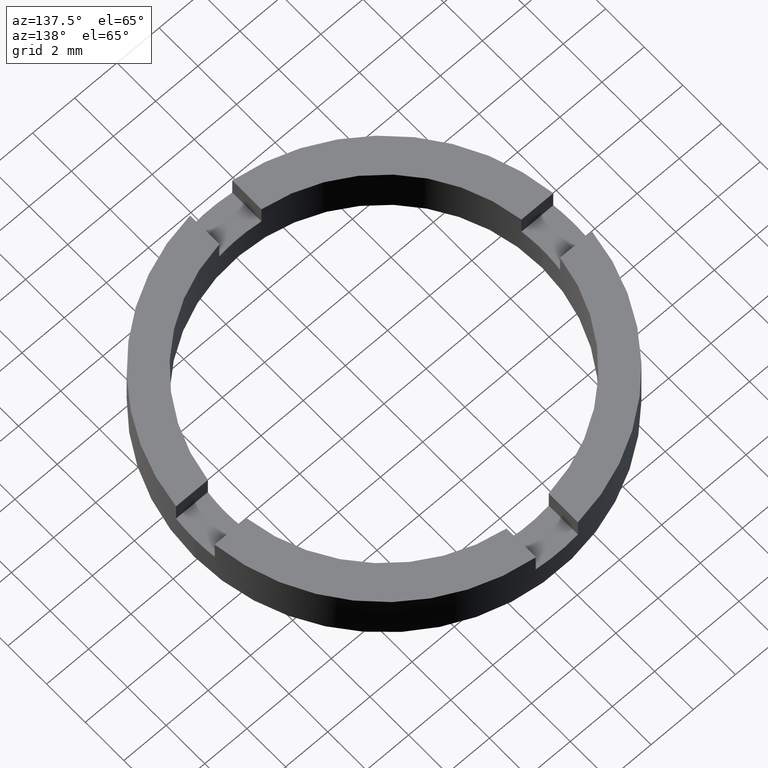
[diagram: clean part render]
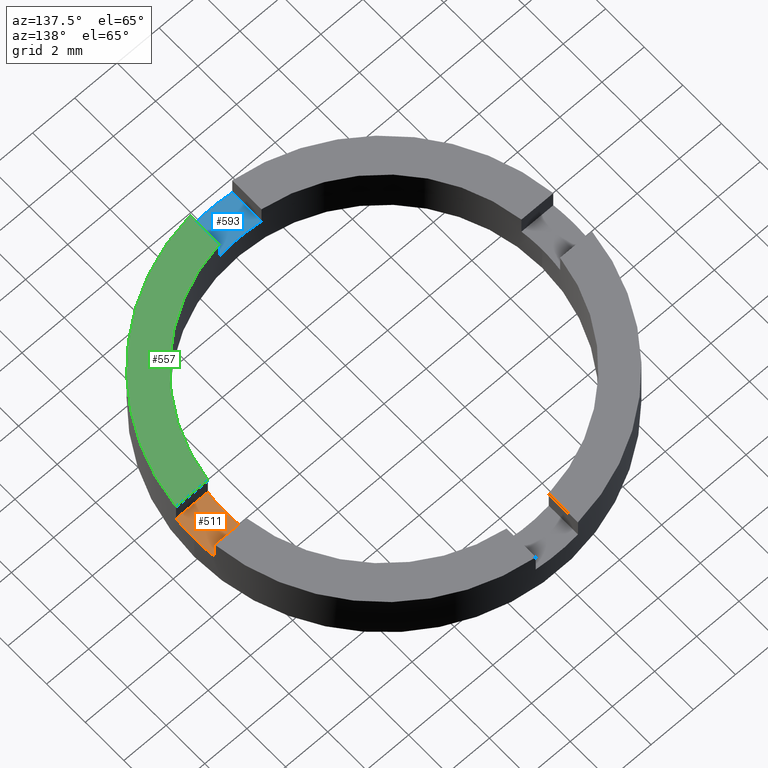
[diagram: same view with three faces highlighted in distinct colors, each labeled with its STEP entity id]
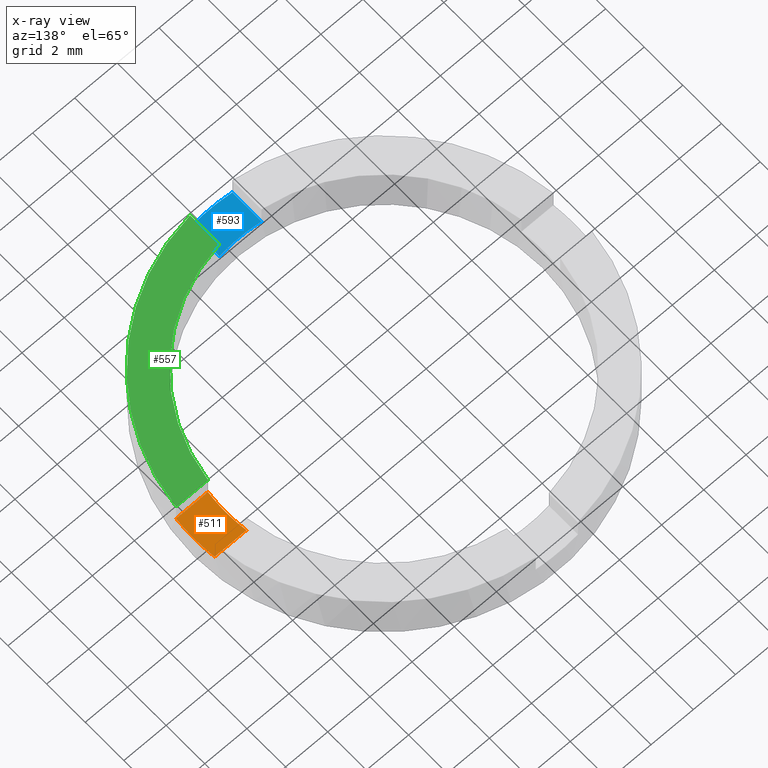
[diagram: x-ray of the same camera — body ghosted, the three highlighted faces saturated]
A machine part, auxiliary view with three faces highlighted in distinct colors.
The next image is the same camera in x-ray (body ghosted, the three faces saturated) — at least one of them is partly hidden behind the body in this view.
Their STEP definitions:

[orange] entity #511 — the highlighted planar face has unit normal (-0, 0, 1).
#47 = CIRCLE ( 'NONE', #61, 9.000000000000000000 ) ;
#50 = LINE ( 'NONE', #742, #319 ) ;
#52 = CIRCLE ( 'NONE', #683, 7.500000000000000000 ) ;
#61 = AXIS2_PLACEMENT_3D ( 'NONE', #219, #422, #149 ) ;
#100 = EDGE_CURVE ( 'NONE', #665, #562, #52, .T. ) ;
#101 = CARTESIAN_POINT ( 'NONE',  ( 7.500000000000000000, 9.184850993605147944E-16, 1.500000000000000000 ) ) ;
#121 = CARTESIAN_POINT ( 'NONE',  ( 7.433034373659256566, 0.9999999999999711342, 1.500000000000000000 ) ) ;
#126 = EDGE_CURVE ( 'NONE', #562, #691, #50, .T. ) ;
#132 = ORIENTED_EDGE ( 'NONE', *, *, #157, .T. ) ;
#140 = CARTESIAN_POINT ( 'NONE',  ( 0.000000000000000000, 0.000000000000000000, 1.500000000000000000 ) ) ;
#149 = DIRECTION ( 'NONE',  ( 1.000000000000000000, 0.000000000000000000, 0.000000000000000000 ) ) ;
#157 = EDGE_CURVE ( 'NONE', #466, #643, #572, .T. ) ;
#198 = DIRECTION ( 'NONE',  ( 1.000000000000000000, 0.000000000000000000, 0.000000000000000000 ) ) ;
#206 = EDGE_CURVE ( 'NONE', #771, #643, #310, .T. ) ;
#219 = CARTESIAN_POINT ( 'NONE',  ( 0.000000000000000000, 0.000000000000000000, 1.500000000000000000 ) ) ;
#231 = EDGE_CURVE ( 'NONE', #691, #466, #47, .T. ) ;
#239 = CARTESIAN_POINT ( 'NONE',  ( 0.000000000000000000, 0.000000000000000000, 1.500000000000000000 ) ) ;
#298 = CARTESIAN_POINT ( 'NONE',  ( 0.000000000000000000, 0.000000000000000000, 1.500000000000000000 ) ) ;
#310 = LINE ( 'NONE', #529, #326 ) ;
#313 = AXIS2_PLACEMENT_3D ( 'NONE', #298, #768, #377 ) ;
#319 = VECTOR ( 'NONE', #550, 1000.000000000000000 ) ;
#326 = VECTOR ( 'NONE', #609, 1000.000000000000000 ) ;
#329 = CARTESIAN_POINT ( 'NONE',  ( 9.000000000000000000, 1.102182119232617714E-15, 1.500000000000000000 ) ) ;
#332 = CIRCLE ( 'NONE', #313, 7.500000000000000000 ) ;
#334 = FACE_OUTER_BOUND ( 'NONE', #381, .T. ) ;
#377 = DIRECTION ( 'NONE',  ( 1.000000000000000000, -1.154631945610162802E-14, 0.000000000000000000 ) ) ;
#381 = EDGE_LOOP ( 'NONE', ( #402, #637, #662, #657, #534, #132 ) ) ;
#402 = ORIENTED_EDGE ( 'NONE', *, *, #206, .F. ) ;
#403 = DIRECTION ( 'NONE',  ( 1.000000000000000000, 0.000000000000000000, 0.000000000000000000 ) ) ;
#422 = DIRECTION ( 'NONE',  ( -0.000000000000000000, 0.000000000000000000, 1.000000000000000000 ) ) ;
#440 = DIRECTION ( 'NONE',  ( 0.000000000000000000, -0.000000000000000000, -1.000000000000000000 ) ) ;
#448 = DIRECTION ( 'NONE',  ( -0.000000000000000000, 0.000000000000000000, 1.000000000000000000 ) ) ;
#466 = VERTEX_POINT ( 'NONE', #329 ) ;
#467 = CARTESIAN_POINT ( 'NONE',  ( 0.000000000000000000, 0.000000000000000000, 1.500000000000000000 ) ) ;
#474 = CARTESIAN_POINT ( 'NONE',  ( 8.944271909999153891, -1.000000000000034417, 1.500000000000000000 ) ) ;
#511 = ADVANCED_FACE ( 'NONE', ( #334 ), #564, .T. ) ;
#513 = DIRECTION ( 'NONE',  ( -0.000000000000000000, 0.000000000000000000, 1.000000000000000000 ) ) ;
#529 = CARTESIAN_POINT ( 'NONE',  ( 3.734474149672289194E-15, 0.9999999999999988898, 1.500000000000000000 ) ) ;
#534 = ORIENTED_EDGE ( 'NONE', *, *, #231, .T. ) ;
#547 = DIRECTION ( 'NONE',  ( 1.000000000000000000, 0.000000000000000000, 0.000000000000000000 ) ) ;
#550 = DIRECTION ( 'NONE',  ( 1.000000000000000000, -3.734474149672292349E-15, 0.000000000000000000 ) ) ;
#562 = VERTEX_POINT ( 'NONE', #583 ) ;
#564 = PLANE ( 'NONE',  #612 ) ;
#572 = CIRCLE ( 'NONE', #772, 9.000000000000000000 ) ;
#583 = CARTESIAN_POINT ( 'NONE',  ( 7.433034373659249461, -1.000000000000028866, 1.500000000000000000 ) ) ;
#609 = DIRECTION ( 'NONE',  ( 1.000000000000000000, -3.734474149672293138E-15, 0.000000000000000000 ) ) ;
#612 = AXIS2_PLACEMENT_3D ( 'NONE', #467, #513, #403 ) ;
#637 = ORIENTED_EDGE ( 'NONE', *, *, #761, .T. ) ;
#643 = VERTEX_POINT ( 'NONE', #710 ) ;
#657 = ORIENTED_EDGE ( 'NONE', *, *, #126, .T. ) ;
#662 = ORIENTED_EDGE ( 'NONE', *, *, #100, .T. ) ;
#665 = VERTEX_POINT ( 'NONE', #101 ) ;
#683 = AXIS2_PLACEMENT_3D ( 'NONE', #140, #440, #198 ) ;
#691 = VERTEX_POINT ( 'NONE', #474 ) ;
#710 = CARTESIAN_POINT ( 'NONE',  ( 8.944271909999160997, 0.9999999999999655831, 1.500000000000000000 ) ) ;
#742 = CARTESIAN_POINT ( 'NONE',  ( -3.734474149672297082E-15, -1.000000000000001110, 1.500000000000000000 ) ) ;
#761 = EDGE_CURVE ( 'NONE', #771, #665, #332, .T. ) ;
#768 = DIRECTION ( 'NONE',  ( 0.000000000000000000, -0.000000000000000000, -1.000000000000000000 ) ) ;
#771 = VERTEX_POINT ( 'NONE', #121 ) ;
#772 = AXIS2_PLACEMENT_3D ( 'NONE', #239, #448, #547 ) ;

[blue] entity #593 — the highlighted planar face has unit normal (-0, 0, 1).
#11 = ORIENTED_EDGE ( 'NONE', *, *, #450, .T. ) ;
#29 = CARTESIAN_POINT ( 'NONE',  ( -0.9999999999999986677, -7.433034373659253013, 1.500000000000000000 ) ) ;
#35 = CIRCLE ( 'NONE', #748, 7.500000000000000000 ) ;
#87 = FACE_OUTER_BOUND ( 'NONE', #781, .T. ) ;
#90 = DIRECTION ( 'NONE',  ( -0.000000000000000000, 0.000000000000000000, 1.000000000000000000 ) ) ;
#108 = DIRECTION ( 'NONE',  ( 0.000000000000000000, 1.000000000000000000, -0.000000000000000000 ) ) ;
#110 = VERTEX_POINT ( 'NONE', #386 ) ;
#111 = CARTESIAN_POINT ( 'NONE',  ( 0.000000000000000000, 0.000000000000000000, 1.500000000000000000 ) ) ;
#168 = DIRECTION ( 'NONE',  ( 1.000000000000000000, 0.000000000000000000, 0.000000000000000000 ) ) ;
#179 = CARTESIAN_POINT ( 'NONE',  ( 0.000000000000000000, 0.000000000000000000, 1.500000000000000000 ) ) ;
#209 = DIRECTION ( 'NONE',  ( -0.000000000000000000, 0.000000000000000000, 1.000000000000000000 ) ) ;
#223 = PLANE ( 'NONE',  #677 ) ;
#285 = ORIENTED_EDGE ( 'NONE', *, *, #754, .F. ) ;
#336 = EDGE_CURVE ( 'NONE', #436, #433, #35, .T. ) ;
#341 = LINE ( 'NONE', #755, #364 ) ;
#360 = DIRECTION ( 'NONE',  ( 1.000000000000000000, 0.000000000000000000, 0.000000000000000000 ) ) ;
#364 = VECTOR ( 'NONE', #108, 1000.000000000000000 ) ;
#366 = CIRCLE ( 'NONE', #510, 9.000000000000000000 ) ;
#367 = LINE ( 'NONE', #532, #633 ) ;
#386 = CARTESIAN_POINT ( 'NONE',  ( 1.000000000000001332, -8.944271909999157444, 1.500000000000000000 ) ) ;
#398 = ORIENTED_EDGE ( 'NONE', *, *, #336, .T. ) ;
#433 = VERTEX_POINT ( 'NONE', #29 ) ;
#436 = VERTEX_POINT ( 'NONE', #595 ) ;
#450 = EDGE_CURVE ( 'NONE', #480, #110, #366, .T. ) ;
#480 = VERTEX_POINT ( 'NONE', #690 ) ;
#510 = AXIS2_PLACEMENT_3D ( 'NONE', #111, #90, #653 ) ;
#525 = CARTESIAN_POINT ( 'NONE',  ( 0.000000000000000000, 0.000000000000000000, 1.500000000000000000 ) ) ;
#532 = CARTESIAN_POINT ( 'NONE',  ( -0.9999999999999986677, 0.000000000000000000, 1.500000000000000000 ) ) ;
#549 = ORIENTED_EDGE ( 'NONE', *, *, #646, .T. ) ;
#593 = ADVANCED_FACE ( 'NONE', ( #87 ), #223, .T. ) ;
#595 = CARTESIAN_POINT ( 'NONE',  ( 1.000000000000001110, -7.433034373659252125, 1.500000000000000000 ) ) ;
#615 = DIRECTION ( 'NONE',  ( 0.000000000000000000, 1.000000000000000000, -0.000000000000000000 ) ) ;
#633 = VECTOR ( 'NONE', #615, 1000.000000000000000 ) ;
#646 = EDGE_CURVE ( 'NONE', #110, #436, #341, .T. ) ;
#653 = DIRECTION ( 'NONE',  ( 1.000000000000000000, 0.000000000000000000, 0.000000000000000000 ) ) ;
#677 = AXIS2_PLACEMENT_3D ( 'NONE', #179, #209, #168 ) ;
#690 = CARTESIAN_POINT ( 'NONE',  ( -0.9999999999999986677, -8.944271909999157444, 1.500000000000000000 ) ) ;
#728 = DIRECTION ( 'NONE',  ( 0.000000000000000000, -0.000000000000000000, -1.000000000000000000 ) ) ;
#748 = AXIS2_PLACEMENT_3D ( 'NONE', #525, #728, #360 ) ;
#754 = EDGE_CURVE ( 'NONE', #480, #433, #367, .T. ) ;
#755 = CARTESIAN_POINT ( 'NONE',  ( 1.000000000000001332, 0.000000000000000000, 1.500000000000000000 ) ) ;
#781 = EDGE_LOOP ( 'NONE', ( #285, #11, #549, #398 ) ) ;

[green] entity #557 — the highlighted planar face has unit normal (0, 0, 1).
#3 = CARTESIAN_POINT ( 'NONE',  ( -3.734474149672297082E-15, -1.000000000000001110, 2.500000000000000000 ) ) ;
#40 = CIRCLE ( 'NONE', #275, 7.500000000000000000 ) ;
#67 = LINE ( 'NONE', #3, #580 ) ;
#82 = CIRCLE ( 'NONE', #746, 9.000000000000000000 ) ;
#92 = VECTOR ( 'NONE', #184, 1000.000000000000000 ) ;
#150 = DIRECTION ( 'NONE',  ( 0.000000000000000000, 0.000000000000000000, 1.000000000000000000 ) ) ;
#159 = CARTESIAN_POINT ( 'NONE',  ( 0.000000000000000000, 0.000000000000000000, 2.500000000000000000 ) ) ;
#184 = DIRECTION ( 'NONE',  ( 0.000000000000000000, 1.000000000000000000, -0.000000000000000000 ) ) ;
#193 = EDGE_CURVE ( 'NONE', #535, #745, #67, .T. ) ;
#210 = ORIENTED_EDGE ( 'NONE', *, *, #193, .F. ) ;
#211 = ORIENTED_EDGE ( 'NONE', *, *, #224, .F. ) ;
#214 = CARTESIAN_POINT ( 'NONE',  ( 0.000000000000000000, 0.000000000000000000, 2.500000000000000000 ) ) ;
#224 = EDGE_CURVE ( 'NONE', #542, #535, #40, .T. ) ;
#256 = CARTESIAN_POINT ( 'NONE',  ( 1.000000000000001332, -7.433034373659253013, 2.500000000000000000 ) ) ;
#259 = DIRECTION ( 'NONE',  ( 0.000000000000000000, 0.000000000000000000, 1.000000000000000000 ) ) ;
#262 = AXIS2_PLACEMENT_3D ( 'NONE', #214, #259, #508 ) ;
#267 = DIRECTION ( 'NONE',  ( 1.000000000000000000, 0.000000000000000000, 0.000000000000000000 ) ) ;
#275 = AXIS2_PLACEMENT_3D ( 'NONE', #473, #758, #354 ) ;
#281 = ORIENTED_EDGE ( 'NONE', *, *, #669, .T. ) ;
#282 = PLANE ( 'NONE',  #262 ) ;
#354 = DIRECTION ( 'NONE',  ( 1.000000000000000000, 0.000000000000000000, 0.000000000000000000 ) ) ;
#370 = CARTESIAN_POINT ( 'NONE',  ( 8.944271909999153891, -1.000000000000034417, 2.500000000000000000 ) ) ;
#379 = VERTEX_POINT ( 'NONE', #673 ) ;
#389 = ORIENTED_EDGE ( 'NONE', *, *, #753, .F. ) ;
#473 = CARTESIAN_POINT ( 'NONE',  ( 0.000000000000000000, 0.000000000000000000, 2.500000000000000000 ) ) ;
#498 = DIRECTION ( 'NONE',  ( 1.000000000000000000, -3.734474149672292349E-15, 0.000000000000000000 ) ) ;
#508 = DIRECTION ( 'NONE',  ( 1.000000000000000000, 0.000000000000000000, -0.000000000000000000 ) ) ;
#535 = VERTEX_POINT ( 'NONE', #698 ) ;
#542 = VERTEX_POINT ( 'NONE', #256 ) ;
#557 = ADVANCED_FACE ( 'NONE', ( #631 ), #282, .T. ) ;
#580 = VECTOR ( 'NONE', #498, 1000.000000000000000 ) ;
#621 = CARTESIAN_POINT ( 'NONE',  ( 1.000000000000001332, 0.000000000000000000, 2.500000000000000000 ) ) ;
#623 = LINE ( 'NONE', #621, #92 ) ;
#631 = FACE_OUTER_BOUND ( 'NONE', #679, .T. ) ;
#669 = EDGE_CURVE ( 'NONE', #379, #745, #82, .T. ) ;
#673 = CARTESIAN_POINT ( 'NONE',  ( 1.000000000000001332, -8.944271909999157444, 2.500000000000000000 ) ) ;
#679 = EDGE_LOOP ( 'NONE', ( #210, #211, #389, #281 ) ) ;
#698 = CARTESIAN_POINT ( 'NONE',  ( 7.433034373659249461, -1.000000000000028866, 2.500000000000000000 ) ) ;
#745 = VERTEX_POINT ( 'NONE', #370 ) ;
#746 = AXIS2_PLACEMENT_3D ( 'NONE', #159, #150, #267 ) ;
#753 = EDGE_CURVE ( 'NONE', #379, #542, #623, .T. ) ;
#758 = DIRECTION ( 'NONE',  ( 0.000000000000000000, 0.000000000000000000, 1.000000000000000000 ) ) ;